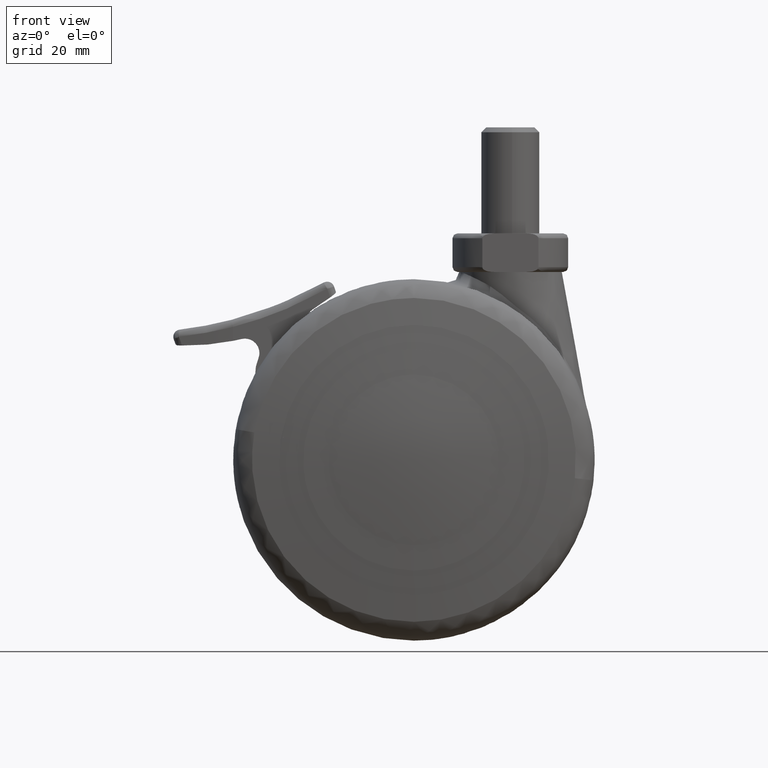
[diagram: clean part render]
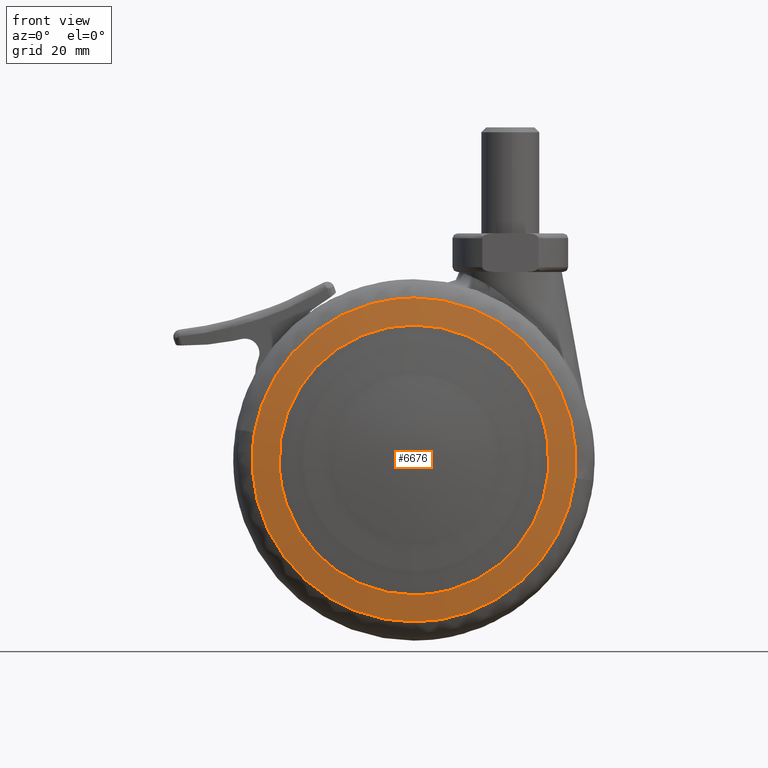
[diagram: same view with one face highlighted and labeled with its STEP entity id]
A machine part, front view. The second image highlights one B-rep face of the part: STEP entity #6676.
In plain terms, the highlighted face is a freeform B-spline surface patch.
Its self-contained STEP definition (entity closure, byte-faithful):
#5234=CARTESIAN_POINT('',(27.804269098958560,-29.554418667086669,3.304938709310281));
#5235=VERTEX_POINT('',#5234);
#5236=CARTESIAN_POINT('',(0.0,-29.554418667083901,-28.0));
#5237=VERTEX_POINT('',#5236);
#5238=CARTESIAN_POINT('',(27.804269098958564,-29.554418667086669,3.304938709310281));
#5239=CARTESIAN_POINT('',(27.999999999999996,-29.554418667083908,1.658265314730672));
#5240=CARTESIAN_POINT('',(28.0,-29.554418667083901,0.0));
#5241=CARTESIAN_POINT('',(28.000000000000004,-29.554418667083905,-28.000000000000004));
#5242=CARTESIAN_POINT('',(0.0,-29.554418667083901,-28.0));
#5250=(BOUNDED_CURVE()B_SPLINE_CURVE(2,(#5238,#5239,#5240,#5241,#5242),.UNSPECIFIED.,.F.,.U.)B_SPLINE_CURVE_WITH_KNOTS((3,2,3),(0.229562594237656,0.250000000000000,0.500000000000000),.UNSPECIFIED.)CURVE()GEOMETRIC_REPRESENTATION_ITEM()RATIONAL_B_SPLINE_CURVE((0.956026990808106,0.976056089768282,1.0,0.707106781186547,1.0))REPRESENTATION_ITEM(''));
#5251=EDGE_CURVE('',#5235,#5237,#5250,.T.);
#5292=CARTESIAN_POINT('',(-27.947776135247761,-29.554418667080132,-1.709330012965848));
#5293=VERTEX_POINT('',#5292);
#5299=CARTESIAN_POINT('',(0.0,-29.554418667083901,-28.0));
#5300=CARTESIAN_POINT('',(-26.339797344666437,-29.554418667083894,-28.0));
#5301=CARTESIAN_POINT('',(-27.947776135247761,-29.554418667080135,-1.709330012965849));
#5309=(BOUNDED_CURVE()B_SPLINE_CURVE(2,(#5299,#5300,#5301),.UNSPECIFIED.,.F.,.U.)B_SPLINE_CURVE_WITH_KNOTS((3,3),(0.500000000000000,0.739333141865528),.UNSPECIFIED.)CURVE()GEOMETRIC_REPRESENTATION_ITEM()RATIONAL_B_SPLINE_CURVE((1.0,0.719603782841075,0.976072426640986))REPRESENTATION_ITEM(''));
#5310=EDGE_CURVE('',#5237,#5293,#5309,.T.);
#5333=CARTESIAN_POINT('',(0.0,-29.554418667083901,28.0));
#5334=VERTEX_POINT('',#5333);
#5335=CARTESIAN_POINT('',(0.0,-29.554418667083901,28.0));
#5336=CARTESIAN_POINT('',(24.868904615982565,-29.554418667083905,27.999999999999993));
#5337=CARTESIAN_POINT('',(27.804269098958564,-29.554418667086669,3.304938709310281));
#5345=(BOUNDED_CURVE()B_SPLINE_CURVE(2,(#5335,#5336,#5337),.UNSPECIFIED.,.F.,.U.)B_SPLINE_CURVE_WITH_KNOTS((3,3),(0.0,0.229562594237656),.UNSPECIFIED.)CURVE()GEOMETRIC_REPRESENTATION_ITEM()RATIONAL_B_SPLINE_CURVE((1.0,0.731050691418265,0.956026990808106))REPRESENTATION_ITEM(''));
#5346=EDGE_CURVE('',#5334,#5235,#5345,.T.);
#5348=CARTESIAN_POINT('',(-27.947776135247761,-29.554418667080135,-1.709330012965849));
#5349=CARTESIAN_POINT('',(-28.0,-29.554418667083905,-0.855462784568192));
#5350=CARTESIAN_POINT('',(-28.0,-29.554418667083901,0.0));
#5351=CARTESIAN_POINT('',(-28.000000000000004,-29.554418667083905,28.000000000000004));
#5352=CARTESIAN_POINT('',(0.0,-29.554418667083901,28.0));
#5360=(BOUNDED_CURVE()B_SPLINE_CURVE(2,(#5348,#5349,#5350,#5351,#5352),.UNSPECIFIED.,.F.,.U.)B_SPLINE_CURVE_WITH_KNOTS((3,2,3),(0.739333141865528,0.750000000000000,1.0),.UNSPECIFIED.)CURVE()GEOMETRIC_REPRESENTATION_ITEM()RATIONAL_B_SPLINE_CURVE((0.976072426640986,0.987502998345473,1.0,0.707106781186547,1.0))REPRESENTATION_ITEM(''));
#5361=EDGE_CURVE('',#5293,#5334,#5360,.T.);
#6208=CARTESIAN_POINT('',(-33.118640977874179,-28.858494706443121,5.695980702990330));
#6209=VERTEX_POINT('',#6208);
#6223=CARTESIAN_POINT('',(0.0,-28.858494288646149,33.604889112993447));
#6224=VERTEX_POINT('',#6223);
#6225=CARTESIAN_POINT('',(-33.118640977874179,-28.858494706443118,5.695980702990330));
#6226=CARTESIAN_POINT('',(-28.318667274189643,-28.858494288646153,33.604889112993447));
#6227=CARTESIAN_POINT('',(0.0,-28.858494288646149,33.604889112993447));
#6235=(BOUNDED_CURVE()B_SPLINE_CURVE(2,(#6225,#6226,#6227),.UNSPECIFIED.,.F.,.U.)B_SPLINE_CURVE_WITH_KNOTS((3,3),(0.779150973645853,1.0),.UNSPECIFIED.)CURVE()GEOMETRIC_REPRESENTATION_ITEM()RATIONAL_B_SPLINE_CURVE((0.939659646668501,0.741259271197268,1.0))REPRESENTATION_ITEM(''));
#6236=EDGE_CURVE('',#6209,#6224,#6235,.T.);
#6238=CARTESIAN_POINT('',(33.390197973979276,-28.858494706162819,-3.792526306765592));
#6239=VERTEX_POINT('',#6238);
#6240=CARTESIAN_POINT('',(0.0,-28.858494288646149,33.604889112993447));
#6241=CARTESIAN_POINT('',(33.604889112993447,-28.858494288646156,33.604889112993447));
#6242=CARTESIAN_POINT('',(33.604889112993447,-28.858494288646149,0.0));
#6243=CARTESIAN_POINT('',(33.604889112993447,-28.858494288646146,-1.902339879364477));
#6244=CARTESIAN_POINT('',(33.390197973979276,-28.858494706162819,-3.792526306765592));
#6252=(BOUNDED_CURVE()B_SPLINE_CURVE(2,(#6240,#6241,#6242,#6243,#6244),.UNSPECIFIED.,.F.,.U.)B_SPLINE_CURVE_WITH_KNOTS((3,2,3),(0.0,0.250000000000000,0.269555763446314),.UNSPECIFIED.)CURVE()GEOMETRIC_REPRESENTATION_ITEM()RATIONAL_B_SPLINE_CURVE((1.0,0.707106781186548,1.0,0.977088997991418,0.957762333067619))REPRESENTATION_ITEM(''));
#6253=EDGE_CURVE('',#6224,#6239,#6252,.T.);
#6306=CARTESIAN_POINT('',(0.0,-28.858494288646149,-33.604889112993447));
#6307=VERTEX_POINT('',#6306);
#6308=CARTESIAN_POINT('',(33.390197973979276,-28.858494706162819,-3.792526306765592));
#6309=CARTESIAN_POINT('',(30.004049367654403,-28.858494288646142,-33.604889112993440));
#6310=CARTESIAN_POINT('',(0.0,-28.858494288646149,-33.604889112993447));
#6318=(BOUNDED_CURVE()B_SPLINE_CURVE(2,(#6308,#6309,#6310),.UNSPECIFIED.,.F.,.U.)B_SPLINE_CURVE_WITH_KNOTS((3,3),(0.269555763446314,0.500000000000000),.UNSPECIFIED.)CURVE()GEOMETRIC_REPRESENTATION_ITEM()RATIONAL_B_SPLINE_CURVE((0.957762333067619,0.730017783195130,1.0))REPRESENTATION_ITEM(''));
#6319=EDGE_CURVE('',#6239,#6307,#6318,.T.);
#6321=CARTESIAN_POINT('',(0.0,-28.858494288646149,-33.604889112993447));
#6322=CARTESIAN_POINT('',(-33.604889112993447,-28.858494288646156,-33.604889112993447));
#6323=CARTESIAN_POINT('',(-33.604889112993447,-28.858494288646149,0.0));
#6324=CARTESIAN_POINT('',(-33.604889112993455,-28.858494288646146,2.868745096114337));
#6325=CARTESIAN_POINT('',(-33.118640977874179,-28.858494706443121,5.695980702990330));
#6333=(BOUNDED_CURVE()B_SPLINE_CURVE(2,(#6321,#6322,#6323,#6324,#6325),.UNSPECIFIED.,.F.,.U.)B_SPLINE_CURVE_WITH_KNOTS((3,2,3),(0.500000000000000,0.750000000000000,0.779150973645854),.UNSPECIFIED.)CURVE()GEOMETRIC_REPRESENTATION_ITEM()RATIONAL_B_SPLINE_CURVE((1.0,0.707106781186548,1.0,0.965847509989279,0.939659646668500))REPRESENTATION_ITEM(''));
#6334=EDGE_CURVE('',#6307,#6209,#6333,.T.);
#6640=CARTESIAN_POINT('',(-36.725201892023698,-25.672866034730479,-36.725446870591945));
#6641=CARTESIAN_POINT('',(-18.463308407764210,-28.385140950209834,-36.926863137651914));
#6642=CARTESIAN_POINT('',(18.463420584633990,-28.385140950209834,-36.926863137651914));
#6643=CARTESIAN_POINT('',(36.725422587902344,-25.672833256654375,-36.725444436459000));
#6644=CARTESIAN_POINT('',(-36.926619517385326,-28.385177333704544,-18.463432919763445));
#6645=CARTESIAN_POINT('',(-18.565127962798751,-31.127366999999879,-18.565251803056459));
#6646=CARTESIAN_POINT('',(18.565240758289999,-31.127366999999879,-18.565251803056459));
#6647=CARTESIAN_POINT('',(36.926841410236896,-28.385144195102889,-18.463431689310458));
#6648=CARTESIAN_POINT('',(-36.926619517385326,-28.385177333704544,18.463435961052948));
#6649=CARTESIAN_POINT('',(-18.565127962798751,-31.127366999999879,18.565254861117531));
#6650=CARTESIAN_POINT('',(18.565240758289999,-31.127366999999879,18.565254861117531));
#6651=CARTESIAN_POINT('',(36.926841410236896,-28.385144195102889,18.463434730599747));
#6652=CARTESIAN_POINT('',(-36.725201826030776,-25.672865146062556,36.725452853999961));
#6653=CARTESIAN_POINT('',(-18.463308374404814,-28.385140051767568,36.926869153511248));
#6654=CARTESIAN_POINT('',(18.463420551274389,-28.385140051767568,36.926869153511248));
#6655=CARTESIAN_POINT('',(36.725422521909046,-25.672832367986569,36.725450419866604));
#6663=(BOUNDED_SURFACE()B_SPLINE_SURFACE(2,2,((#6640,#6644,#6648,#6652),(#6641,#6645,#6649,#6653),(#6642,#6646,#6650,#6654),(#6643,#6647,#6651,#6655)),.UNSPECIFIED.,.F.,.F.,.U.)B_SPLINE_SURFACE_WITH_KNOTS((3,1,3),(3,1,3),(77.771751591873169,113.912011031043800,150.052490046310400),(77.771510515213009,113.912011031043800,150.052517499923710),.UNSPECIFIED.)GEOMETRIC_REPRESENTATION_ITEM()RATIONAL_B_SPLINE_SURFACE(((1.011029320812576,1.005514623620401,1.005514623620401,1.011029322629333),(1.005514697192174,1.0,1.0,1.005514699008932),(1.005514697192174,1.0,1.0,1.005514699008932),(1.011029387822787,1.005514690630613,1.005514690630613,1.011029389639544)))REPRESENTATION_ITEM('')SURFACE());
#6664=ORIENTED_EDGE('',*,*,#6236,.F.);
#6665=ORIENTED_EDGE('',*,*,#6334,.F.);
#6666=ORIENTED_EDGE('',*,*,#6319,.F.);
#6667=ORIENTED_EDGE('',*,*,#6253,.F.);
#6668=EDGE_LOOP('',(#6664,#6665,#6666,#6667));
#6669=FACE_OUTER_BOUND('',#6668,.T.);
#6670=ORIENTED_EDGE('',*,*,#5310,.T.);
#6671=ORIENTED_EDGE('',*,*,#5361,.T.);
#6672=ORIENTED_EDGE('',*,*,#5346,.T.);
#6673=ORIENTED_EDGE('',*,*,#5251,.T.);
#6674=EDGE_LOOP('',(#6670,#6671,#6672,#6673));
#6675=FACE_BOUND('',#6674,.T.);
#6676=ADVANCED_FACE('',(#6669,#6675),#6663,.T.);